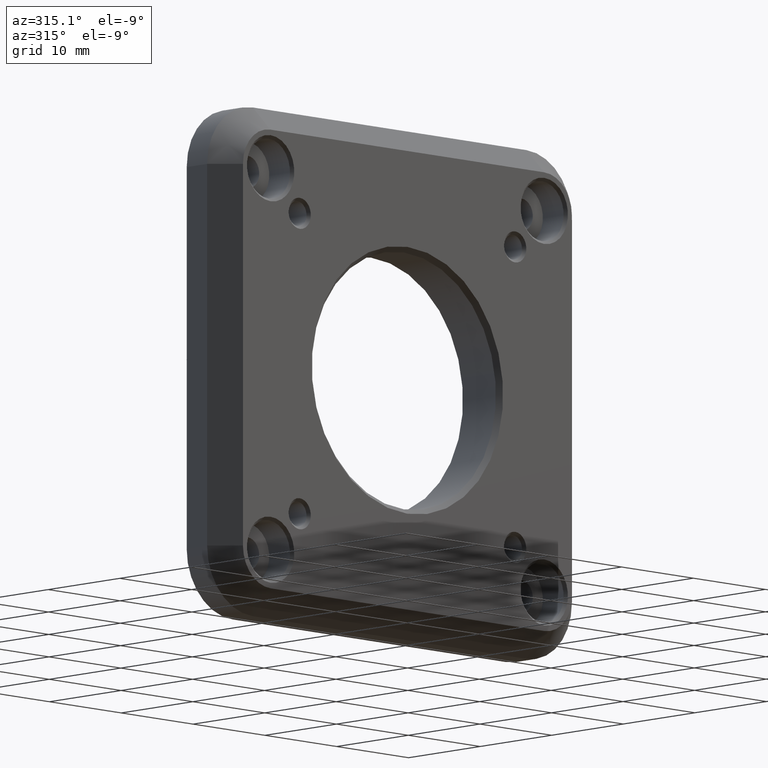
[diagram: clean part render]
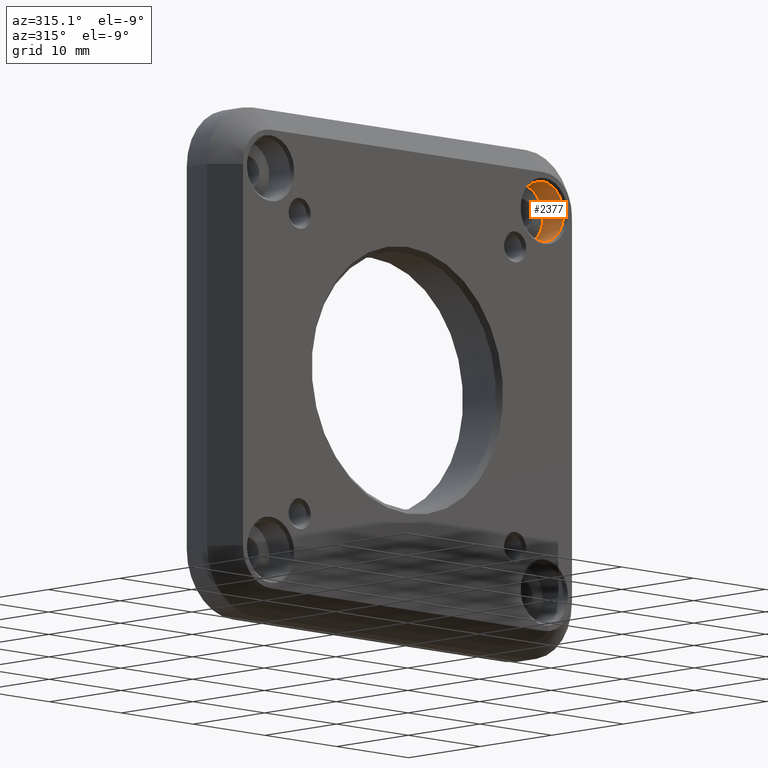
[diagram: same view with one face highlighted and labeled with its STEP entity id]
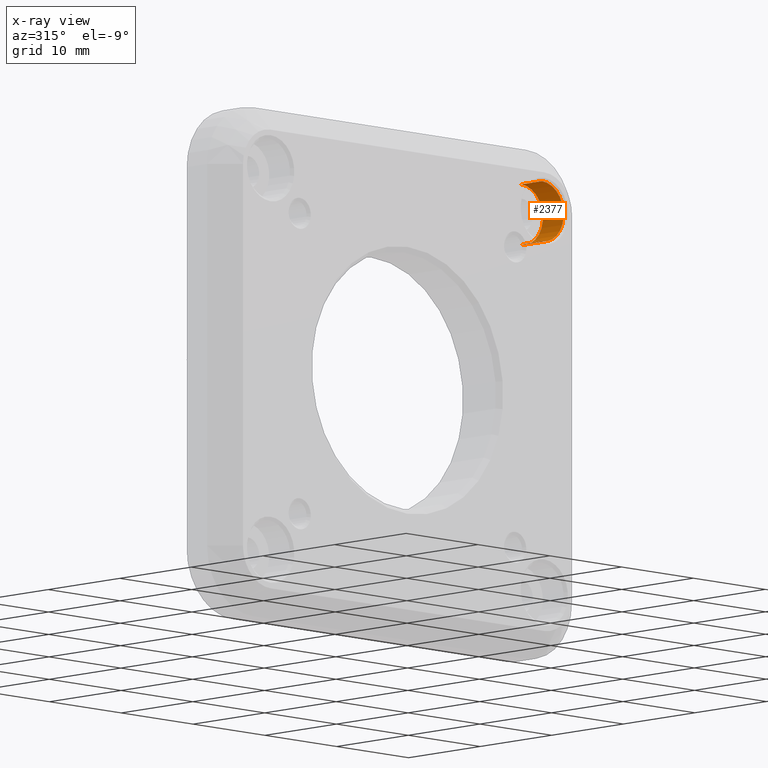
[diagram: x-ray of the same camera — body ghosted, the highlighted face saturated]
A machine part, auxiliary view. The second image highlights one B-rep face of the part: STEP entity #2377.
The next image is the same camera in x-ray: the body ghosted, the highlighted face saturated — about 0% of this face is hidden behind the body in this view.
In plain terms, the highlighted cylindrical surface (edge-blend (fillet) strip) has radius 3 mm, axis along (-0, -1, -0).
Its self-contained STEP definition (entity closure, byte-faithful):
#57 = EDGE_CURVE ( 'NONE', #2699, #2123, #1080, .T. ) ;
#165 = ORIENTED_EDGE ( 'NONE', *, *, #640, .T. ) ;
#298 = VECTOR ( 'NONE', #970, 1000.000000000000000 ) ;
#479 = DIRECTION ( 'NONE',  ( 0.000000000000000000, 0.000000000000000000, -1.000000000000000000 ) ) ;
#588 = DIRECTION ( 'NONE',  ( 0.000000000000000000, 0.000000000000000000, -1.000000000000000000 ) ) ;
#622 = VERTEX_POINT ( 'NONE', #3819 ) ;
#640 = EDGE_CURVE ( 'NONE', #2746, #622, #3367, .T. ) ;
#730 = CARTESIAN_POINT ( 'NONE',  ( 19.05000000000000071, 3.200000000000001510, 22.04999999999999716 ) ) ;
#773 = AXIS2_PLACEMENT_3D ( 'NONE', #3377, #3684, #588 ) ;
#913 = FACE_OUTER_BOUND ( 'NONE', #2290, .T. ) ;
#970 = DIRECTION ( 'NONE',  ( -0.000000000000000000, -1.000000000000000000, -0.000000000000000000 ) ) ;
#1019 = AXIS2_PLACEMENT_3D ( 'NONE', #3299, #1744, #479 ) ;
#1080 = CIRCLE ( 'NONE', #1019, 2.999999999999995559 ) ;
#1130 = EDGE_CURVE ( 'NONE', #2699, #2746, #1598, .T. ) ;
#1134 = ORIENTED_EDGE ( 'NONE', *, *, #57, .F. ) ;
#1200 = AXIS2_PLACEMENT_3D ( 'NONE', #1450, #2693, #3966 ) ;
#1255 = CARTESIAN_POINT ( 'NONE',  ( 19.05000000000000071, 0.000000000000000000, 16.05000000000000426 ) ) ;
#1263 = CYLINDRICAL_SURFACE ( 'NONE', #773, 2.999999999999995559 ) ;
#1434 = DIRECTION ( 'NONE',  ( -0.000000000000000000, -1.000000000000000000, -0.000000000000000000 ) ) ;
#1450 = CARTESIAN_POINT ( 'NONE',  ( 19.05000000000000071, 0.3000000000000116462, 19.05000000000000071 ) ) ;
#1506 = CARTESIAN_POINT ( 'NONE',  ( 19.05000000000000071, 3.200000000000001510, 16.05000000000000426 ) ) ;
#1598 = LINE ( 'NONE', #1255, #298 ) ;
#1744 = DIRECTION ( 'NONE',  ( -0.000000000000000000, -1.000000000000000000, -0.000000000000000000 ) ) ;
#2123 = VERTEX_POINT ( 'NONE', #730 ) ;
#2158 = ORIENTED_EDGE ( 'NONE', *, *, #2561, .F. ) ;
#2290 = EDGE_LOOP ( 'NONE', ( #2158, #1134, #3047, #165 ) ) ;
#2377 = ADVANCED_FACE ( 'NONE', ( #913 ), #1263, .F. ) ;
#2513 = CARTESIAN_POINT ( 'NONE',  ( 19.05000000000000071, 0.3000000000000116462, 16.05000000000000426 ) ) ;
#2561 = EDGE_CURVE ( 'NONE', #2123, #622, #3409, .T. ) ;
#2693 = DIRECTION ( 'NONE',  ( 0.000000000000000000, -1.000000000000000000, 0.000000000000000000 ) ) ;
#2699 = VERTEX_POINT ( 'NONE', #1506 ) ;
#2702 = CARTESIAN_POINT ( 'NONE',  ( 19.05000000000000071, -0.000000000000000000, 22.04999999999999716 ) ) ;
#2746 = VERTEX_POINT ( 'NONE', #2513 ) ;
#3047 = ORIENTED_EDGE ( 'NONE', *, *, #1130, .T. ) ;
#3299 = CARTESIAN_POINT ( 'NONE',  ( 19.05000000000000071, 3.200000000000001510, 19.05000000000000071 ) ) ;
#3314 = VECTOR ( 'NONE', #1434, 1000.000000000000000 ) ;
#3367 = CIRCLE ( 'NONE', #1200, 2.999999999999995559 ) ;
#3377 = CARTESIAN_POINT ( 'NONE',  ( 19.05000000000000071, -0.000000000000000000, 19.05000000000000071 ) ) ;
#3409 = LINE ( 'NONE', #2702, #3314 ) ;
#3684 = DIRECTION ( 'NONE',  ( -0.000000000000000000, -1.000000000000000000, -0.000000000000000000 ) ) ;
#3819 = CARTESIAN_POINT ( 'NONE',  ( 19.05000000000000071, 0.3000000000000116462, 22.04999999999999716 ) ) ;
#3966 = DIRECTION ( 'NONE',  ( 0.000000000000000000, 0.000000000000000000, 1.000000000000000000 ) ) ;